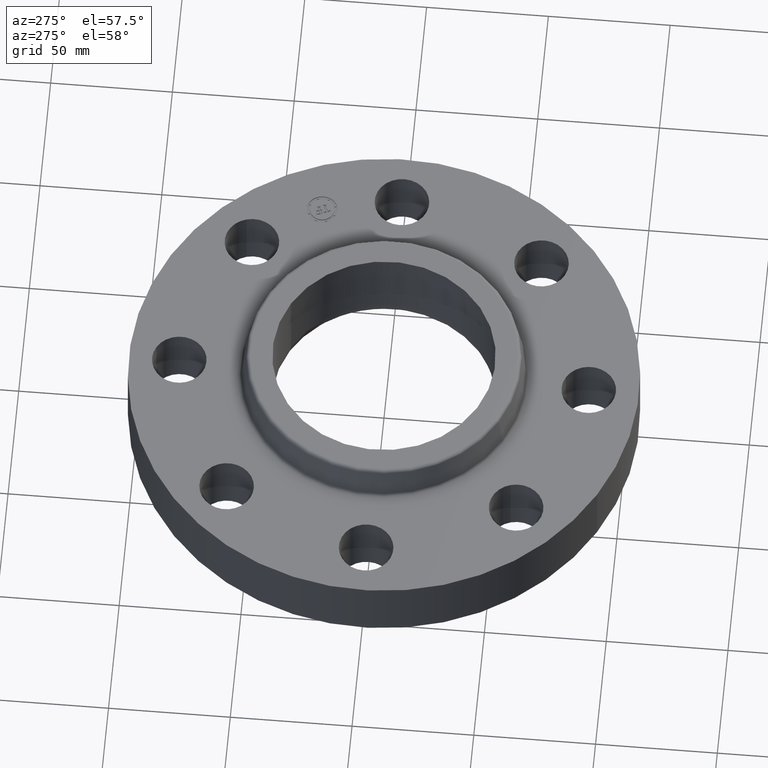
[diagram: clean part render]
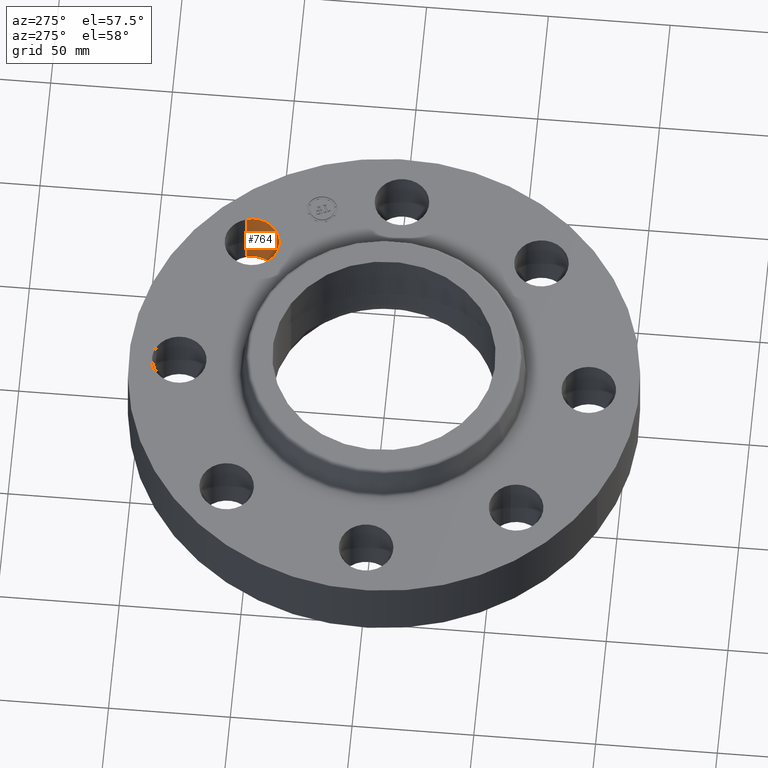
[diagram: same view with one face highlighted and labeled with its STEP entity id]
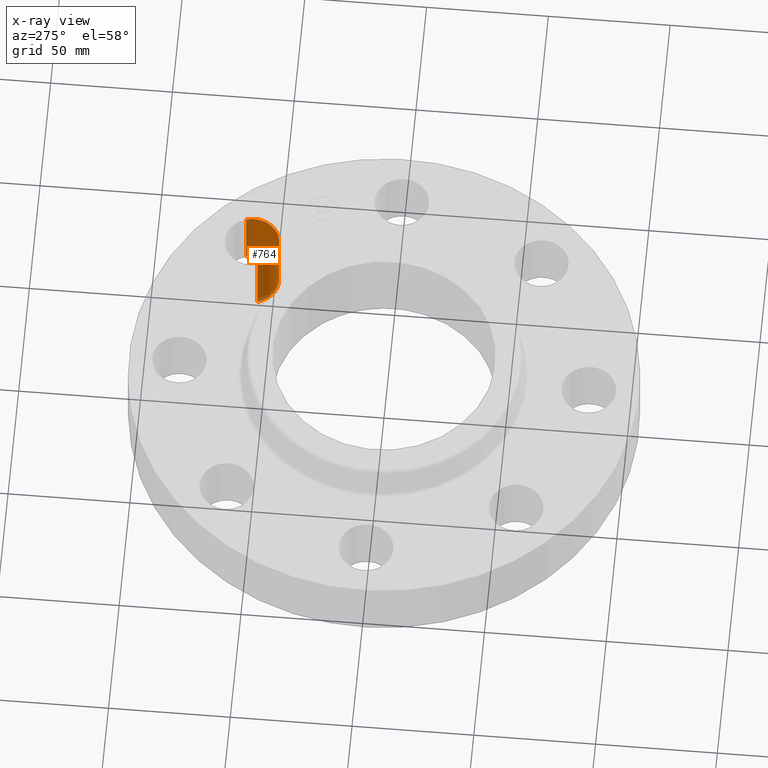
[diagram: x-ray of the same camera — body ghosted, the highlighted face saturated]
A machine part, auxiliary view. The second image highlights one B-rep face of the part: STEP entity #764.
The next image is the same camera in x-ray: the body ghosted, the highlighted face saturated — about 4% of this face is hidden behind the body in this view.
In plain terms, the highlighted cylindrical surface (edge-blend (fillet) strip) has radius 11.176 mm, axis along (0, 0, -1).
Its self-contained STEP definition (entity closure, byte-faithful):
#542=AXIS2_PLACEMENT_3D('Circle Axis2P3D',#540,#541,$) ;
#725=AXIS2_PLACEMENT_3D('Cylinder Axis2P3D',#722,#723,#724) ;
#755=AXIS2_PLACEMENT_3D('Circle Axis2P3D',#753,#754,$) ;
#535=CARTESIAN_POINT('Vertex',(1.91832160854,2.21664605203,0.)) ;
#537=CARTESIAN_POINT('Vertex',(2.76272528293,2.46440083944,0.)) ;
#540=CARTESIAN_POINT('Axis2P3D Location',(2.34052344574,2.34052344574,0.)) ;
#722=CARTESIAN_POINT('Axis2P3D Location',(2.34052344574,2.34052344574,1.11606299213)) ;
#727=CARTESIAN_POINT('Line Origine',(1.91832160854,2.21664605203,0.560000000002)) ;
#731=CARTESIAN_POINT('Vertex',(1.91832160854,2.21664605203,1.12)) ;
#734=CARTESIAN_POINT('Line Origine',(2.76272528293,2.46440083944,0.560000000002)) ;
#738=CARTESIAN_POINT('Vertex',(2.76272528293,2.46440083944,1.12)) ;
#753=CARTESIAN_POINT('Axis2P3D Location',(2.34052344574,2.34052344574,1.12)) ;
#541=DIRECTION('Axis2P3D Direction',(0.,0.,-0.0393700787402)) ;
#723=DIRECTION('Axis2P3D Direction',(0.,0.,-0.0393700787402)) ;
#724=DIRECTION('Axis2P3D XDirection',(0.0377775444876,0.0110842335096,0.)) ;
#728=DIRECTION('Vector Direction',(0.,0.,-0.0393700787402)) ;
#735=DIRECTION('Vector Direction',(0.,0.,-0.0393700787402)) ;
#754=DIRECTION('Axis2P3D Direction',(0.,0.,-0.0393700787402)) ;
#729=VECTOR('Line Direction',#728,0.0393700787402) ;
#736=VECTOR('Line Direction',#735,0.0393700787402) ;
#759=ORIENTED_EDGE('',*,*,#740,.F.) ;
#760=ORIENTED_EDGE('',*,*,#544,.T.) ;
#761=ORIENTED_EDGE('',*,*,#733,.T.) ;
#762=ORIENTED_EDGE('',*,*,#757,.F.) ;
#764=ADVANCED_FACE('PartBody',(#763),#726,.F.) ;
#543=CIRCLE('generated circle',#542,0.440000000002) ;
#756=CIRCLE('generated circle',#755,0.440000000002) ;
#726=CYLINDRICAL_SURFACE('generated cylinder',#725,0.440000000002) ;
#544=EDGE_CURVE('',#538,#536,#543,.T.) ;
#733=EDGE_CURVE('',#536,#732,#730,.F.) ;
#740=EDGE_CURVE('',#538,#739,#737,.F.) ;
#757=EDGE_CURVE('',#739,#732,#756,.T.) ;
#758=EDGE_LOOP('',(#759,#760,#761,#762)) ;
#763=FACE_OUTER_BOUND('',#758,.T.) ;
#730=LINE('Line',#727,#729) ;
#737=LINE('Line',#734,#736) ;
#536=VERTEX_POINT('',#535) ;
#538=VERTEX_POINT('',#537) ;
#732=VERTEX_POINT('',#731) ;
#739=VERTEX_POINT('',#738) ;